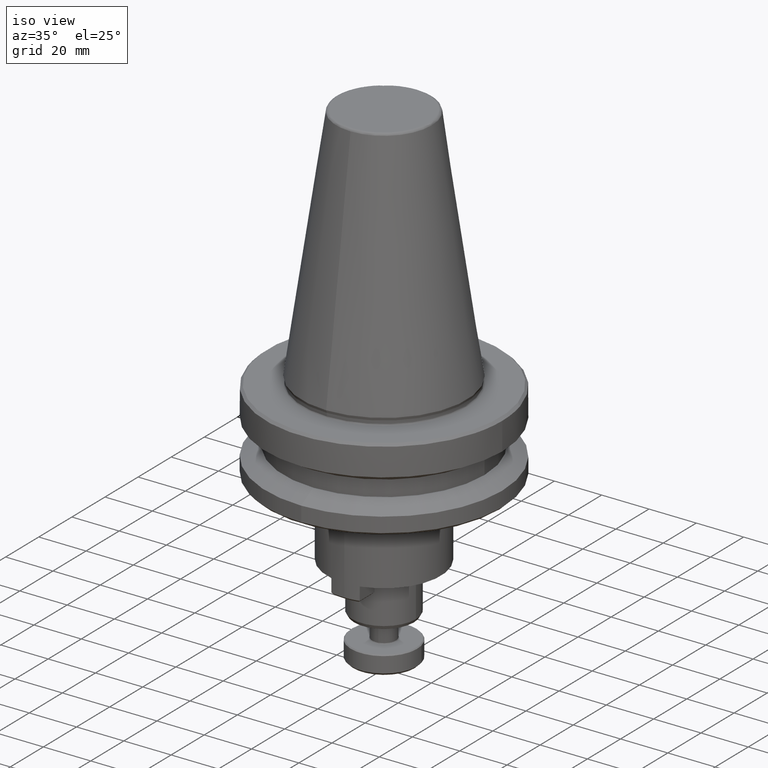
[diagram: clean part render]
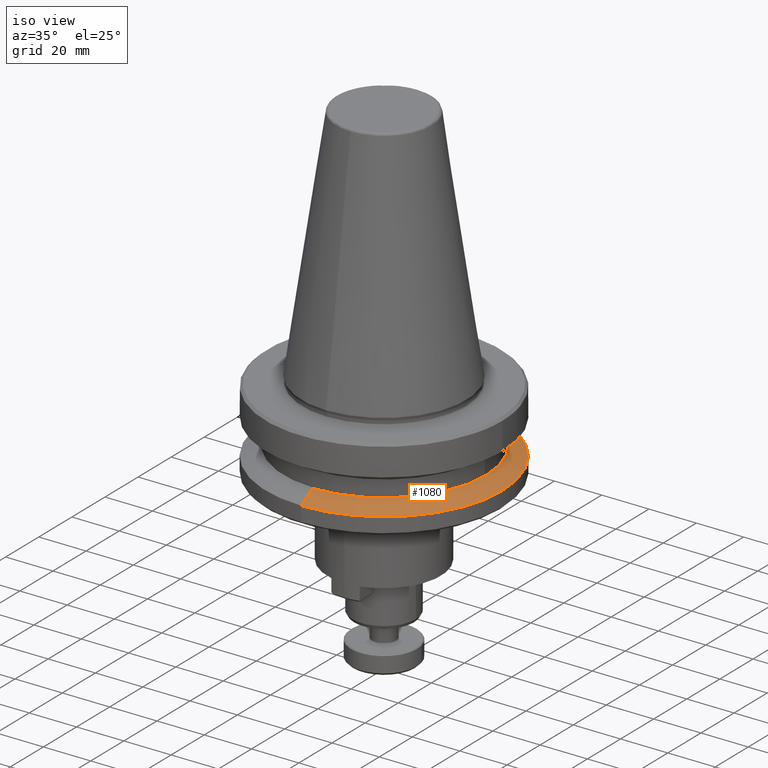
[diagram: same view with one face highlighted and labeled with its STEP entity id]
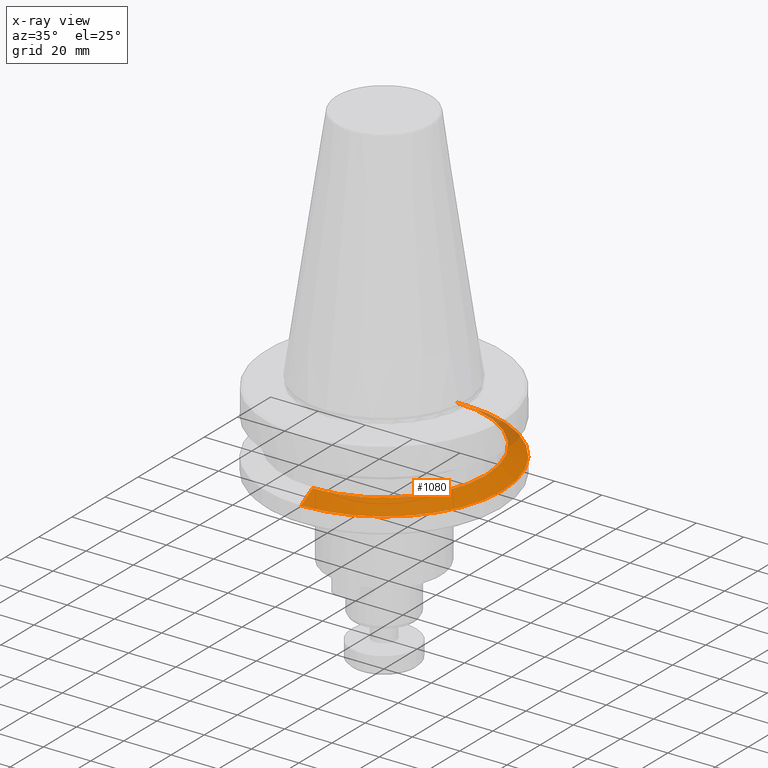
[diagram: x-ray of the same camera — body ghosted, the highlighted face saturated]
A machine part, iso view. The second image highlights one B-rep face of the part: STEP entity #1080.
The next image is the same camera in x-ray: the body ghosted, the highlighted face saturated — about 6% of this face is hidden behind the body in this view.
In plain terms, the highlighted conical surface has half-angle 60 deg.
Its self-contained STEP definition (entity closure, byte-faithful):
#73 = CIRCLE ( 'NONE', #1289, 50.00000000000000000 ) ;
#94 = VERTEX_POINT ( 'NONE', #1631 ) ;
#292 = CIRCLE ( 'NONE', #2585, 43.07217782373777500 ) ;
#325 = CARTESIAN_POINT ( 'NONE',  ( 0.0000000000000000000, 0.0000000000000000000, -30.69978003296247200 ) ) ;
#326 = DIRECTION ( 'NONE',  ( 0.0000000000000000000, 1.000000000000000000, 6.938893895262917700E-017 ) ) ;
#337 = DIRECTION ( 'NONE',  ( 0.0000000000000000000, 3.469446947631458200E-017, -1.000000000000000000 ) ) ;
#386 = LINE ( 'NONE', #723, #2080 ) ;
#388 = CONICAL_SURFACE ( 'NONE', #1596, 50.00000006228882700, 1.047197551202742300 ) ;
#394 = CARTESIAN_POINT ( 'NONE',  ( 5.699027233104723400E-015, -43.07217782373777500, -26.69999999869390500 ) ) ;
#451 = ORIENTED_EDGE ( 'NONE', *, *, #2169, .F. ) ;
#588 = VECTOR ( 'NONE', #1486, 999.9999999999998900 ) ;
#723 = CARTESIAN_POINT ( 'NONE',  ( 6.123234003364946900E-015, -50.00000006228882700, -30.69978003296247600 ) ) ;
#740 = ORIENTED_EDGE ( 'NONE', *, *, #1376, .T. ) ;
#762 = CARTESIAN_POINT ( 'NONE',  ( 0.0000000000000000000, -1.387702463109033800E-016, -26.69999999869390500 ) ) ;
#864 = ORIENTED_EDGE ( 'NONE', *, *, #1569, .T. ) ;
#1080 = ADVANCED_FACE ( 'NONE', ( #1635 ), #388, .T. ) ;
#1289 = AXIS2_PLACEMENT_3D ( 'NONE', #2724, #2721, #2716 ) ;
#1358 = VERTEX_POINT ( 'NONE', #394 ) ;
#1376 = EDGE_CURVE ( 'NONE', #1358, #94, #386, .T. ) ;
#1443 = DIRECTION ( 'NONE',  ( 0.0000000000000000000, 1.000000000000000000, 0.0000000000000000000 ) ) ;
#1484 = CARTESIAN_POINT ( 'NONE',  ( 0.0000000000000000000, 50.00000006228882700, -30.69978003296246900 ) ) ;
#1486 = DIRECTION ( 'NONE',  ( 0.0000000000000000000, 0.8660254037875109200, -0.4999999999946787000 ) ) ;
#1569 = EDGE_CURVE ( 'NONE', #94, #2358, #73, .T. ) ;
#1596 = AXIS2_PLACEMENT_3D ( 'NONE', #325, #337, #326 ) ;
#1631 = CARTESIAN_POINT ( 'NONE',  ( 6.123233995736765300E-015, -50.00000000000000000, -30.69977999700000400 ) ) ;
#1635 = FACE_OUTER_BOUND ( 'NONE', #1989, .T. ) ;
#1638 = DIRECTION ( 'NONE',  ( 0.0000000000000000000, 3.469446947631458200E-017, -1.000000000000000000 ) ) ;
#1766 = LINE ( 'NONE', #1484, #588 ) ;
#1913 = DIRECTION ( 'NONE',  ( 1.060575238728669300E-016, -0.8660254037875109200, -0.4999999999946787600 ) ) ;
#1943 = VERTEX_POINT ( 'NONE', #2071 ) ;
#1989 = EDGE_LOOP ( 'NONE', ( #2247, #740, #864, #451 ) ) ;
#2071 = CARTESIAN_POINT ( 'NONE',  ( 0.0000000000000000000, 43.07217782373777500, -26.69999999869390500 ) ) ;
#2080 = VECTOR ( 'NONE', #1913, 1000.000000000000000 ) ;
#2169 = EDGE_CURVE ( 'NONE', #1943, #2358, #1766, .T. ) ;
#2247 = ORIENTED_EDGE ( 'NONE', *, *, #2758, .T. ) ;
#2358 = VERTEX_POINT ( 'NONE', #2733 ) ;
#2585 = AXIS2_PLACEMENT_3D ( 'NONE', #762, #1638, #1443 ) ;
#2716 = DIRECTION ( 'NONE',  ( -1.000000000000000000, 0.0000000000000000000, 0.0000000000000000000 ) ) ;
#2721 = DIRECTION ( 'NONE',  ( -0.0000000000000000000, -0.0000000000000000000, 1.000000000000000000 ) ) ;
#2724 = CARTESIAN_POINT ( 'NONE',  ( 0.0000000000000000000, 0.0000000000000000000, -30.69977999700000400 ) ) ;
#2733 = CARTESIAN_POINT ( 'NONE',  ( 0.0000000000000000000, 50.00000000000000700, -30.69977999700000400 ) ) ;
#2758 = EDGE_CURVE ( 'NONE', #1943, #1358, #292, .T. ) ;